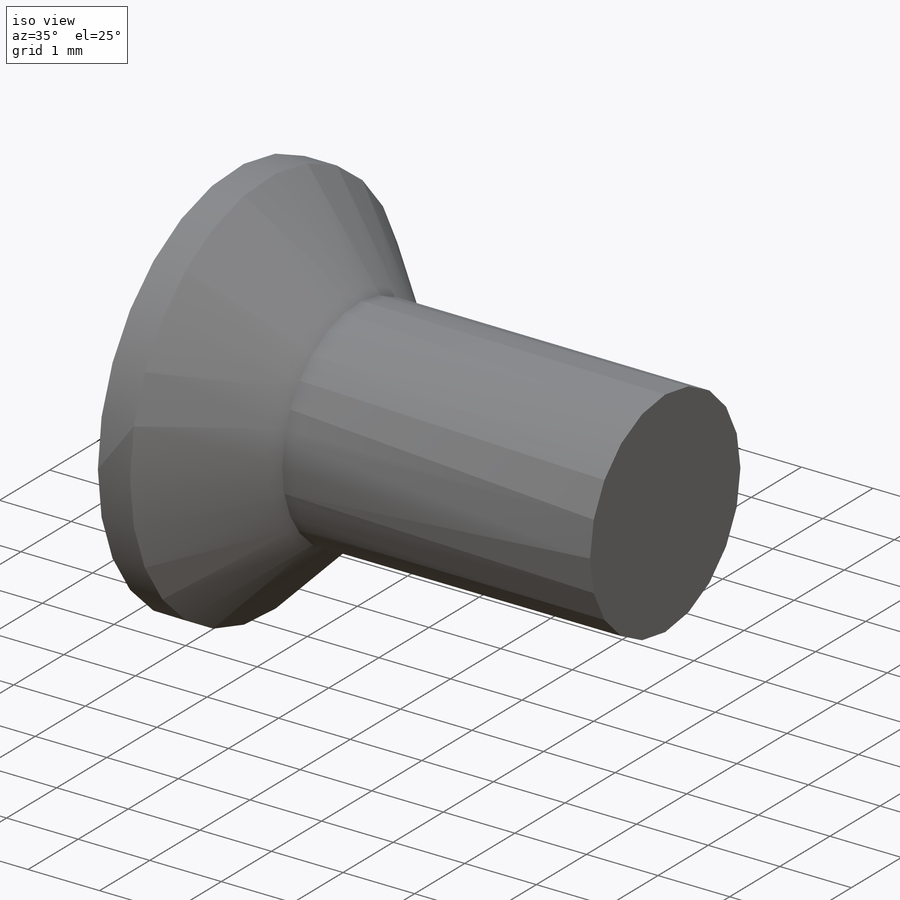
[diagram: iso view]
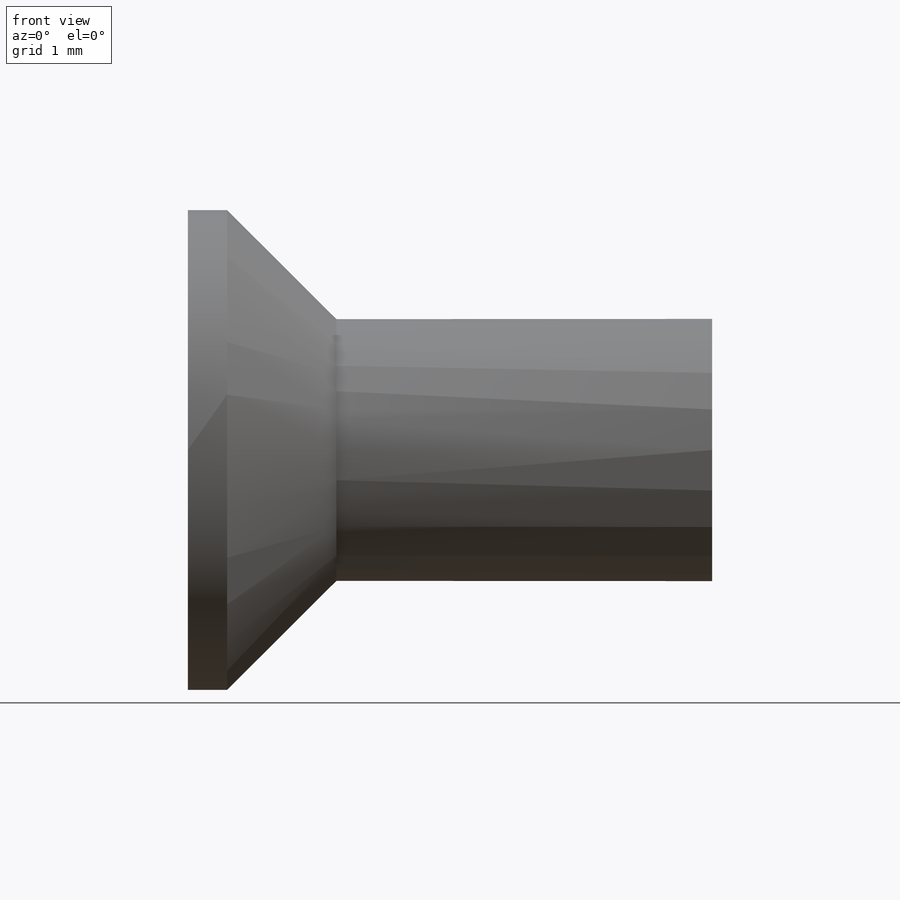
[diagram: front view]
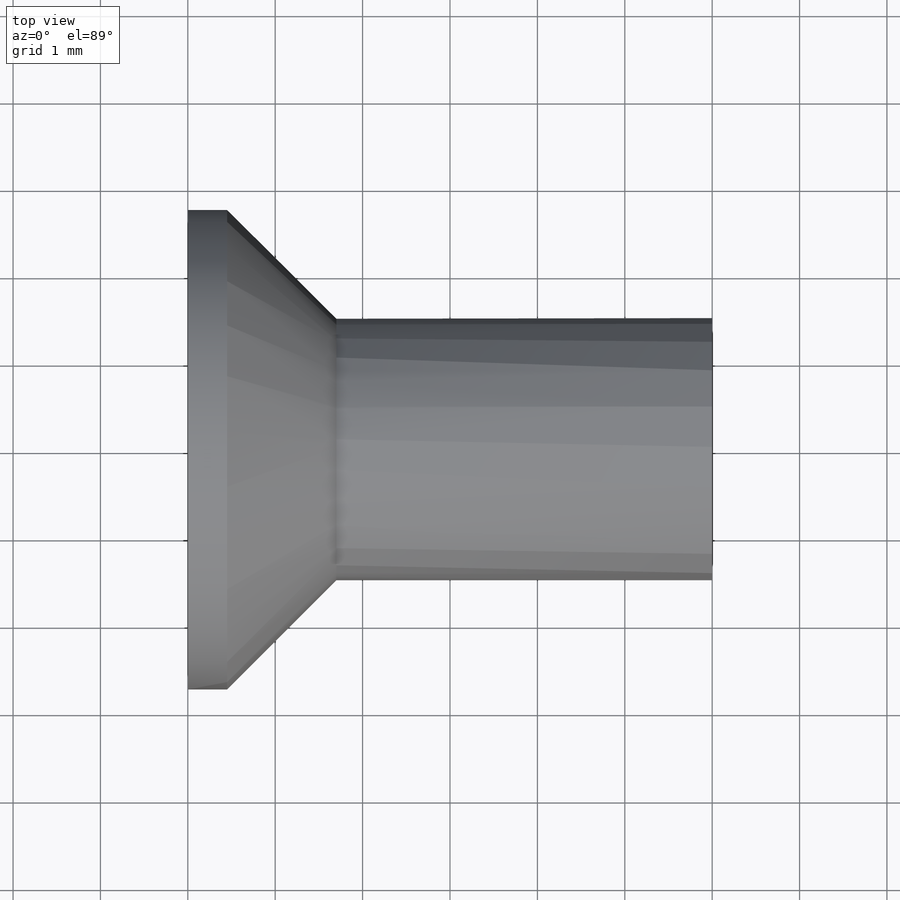
[diagram: top view]
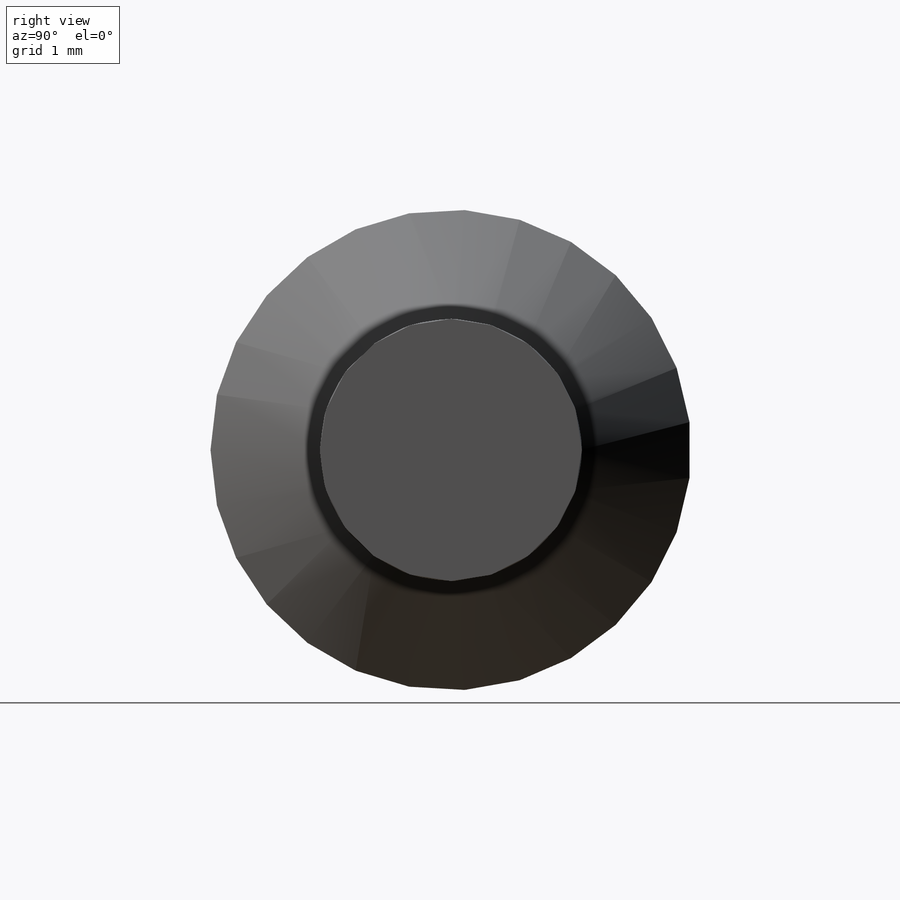
[diagram: right view]
SOLIDWORKS PART (.sldprt)
format: sldprt  version: not decoded by parser v0  size: 1,225,728 bytes
history: native  units: mm
features: sketch x5, plane x4, material x1, revolve x1, thread x1, cut_extrude x1, pattern_circular x1, cut_revolve x1, pattern_linear x1 (+9 scaffold rows collapsed)
feature tree (25):
  scaffold x9  (default folders/planes/origin — collapsed)
  material  "Material <não especificado>"
  plane  "Plane1"
  plane  "Plane2"
  plane  "Plane3"
  sketch  "BodySke"  dims[c1.Diameter=2.5mm c1.D2=76.2mm c1.D3=5.842mm c1.D4=~18.513272mm c2.D4=82.0deg c2.D5=~19.681746mm c3.D4=19.3548mm c3.D5=~7.740726mm c4.D5=~80.148096deg c4.Length=5.0mm c4.Head_ht=1.5mm c4.Head_dia=4.7mm c5.D5=~8.373577mm c5.Head_ang=90.0deg c5.D6=0.4mm c5.D7=88.9mm c5.Advance=0.45mm c5.Thread_nom=5.0mm c5.Thread_lim=30.6705mm]
  revolve  "Base-Revolve"  [1 undecoded]
  thread  "ThreadCosmetic"  Diameter=3.05mm Thread_length=3.05mm Thread_minor=1.993mm  [1 undecoded]
  sketch  "Sketch2"  dims[Slot_width=0.8mm D1=0.4mm D2=4.7mm D3=2.35mm]
  cut_extrude  "Slot"  Depth=0.7mm Slot_depth=0.7mm
  sketch  "Sketch3"  dims[c1.Cross_dia=12.9286mm c1.Cross_width=2.1844mm c1.D3=3.175mm c1.D4=6.4643mm c1.D5=3.175mm c1.D6=6.35mm c2.D6=90.0deg c3.D6=12.9286mm c3.D7=2.1844mm c3.D8=6.4643mm c3.Cross_dia=19.05mm c3.D1=19.05mm c3.Cross_width=6.35mm c3.D2=6.35mm c3.D3=9.525mm c3.D4=9.525mm c3.D5=3.175mm c4.D6=3.175mm c4.D7=6.35mm c4.D8=6.35mm c4.Cross_dia=2.8mm c4.Cross_width=0.74mm c4.D1=1.4mm c4.D2=0.37mm]
  plane  "Plane4"  Offset=1.78mm Cross_depth=1.78mm
  sketch  "Sketch4"  dims[c1.D1=~2.615571mm c1.D2=2.1844mm c2.D1=0.37mm c2.D2=0.37mm c2.D3=0.185mm c2.D4=0.185mm]
  pattern_circular  "CirPattern1"  Count=2 Angle=90deg
  sketch  "ThdSchSke"  dims[c1.Thread_minor=~1.03886mm c1.Diameter=~1.413535mm c1.Start=~0.988134mm c1.D4=~4.446753mm c1.Vee=60.0deg c2.Thread_minor=~1.03886mm c2.Start=~2.540025mm c2.D1=~0.108159mm c2.D2=~0.108159mm c3.D1=~0.216319mm c3.SideAngle=55.0deg c3.D2=~0.216319mm c3.VeeAngle=70.0deg c3.Thread_minor=1.993mm c3.Overcut=3.125mm c3.Diameter=2.5mm c3.D6=~8.326268mm c4.D1=~8.326268mm c5.D1=90.0deg c5.Start=11.1125mm c6.Start=~44.450025mm c7.Start=~1.950001mm]
  cut_revolve  "ThreadSchematic"  Angle=360deg
  pattern_linear  "ThdSchPat"  Count1=8 Count2=1 Spacing1=0.435714mm Spacing2=50mm Num_threads=8 Advance=0.435714mm
decode coverage: 10 of 11 modeling features carry decoded parameters
note: ~ marks probable driven/reference dimensions
note: 2 parameter values undecoded
note: suppression state not decoded; provenance and decode notes live in map.json
